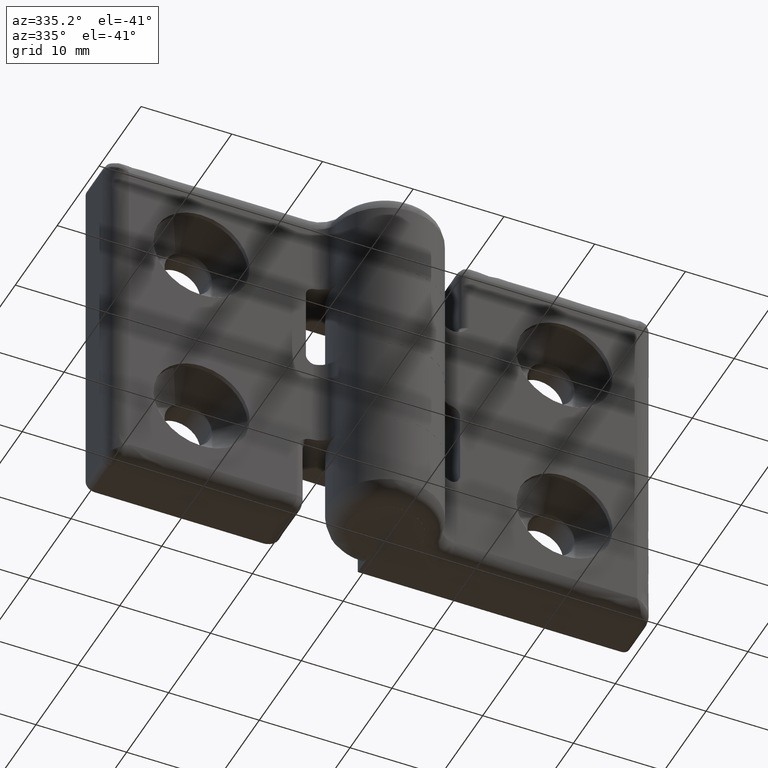
[diagram: clean part render]
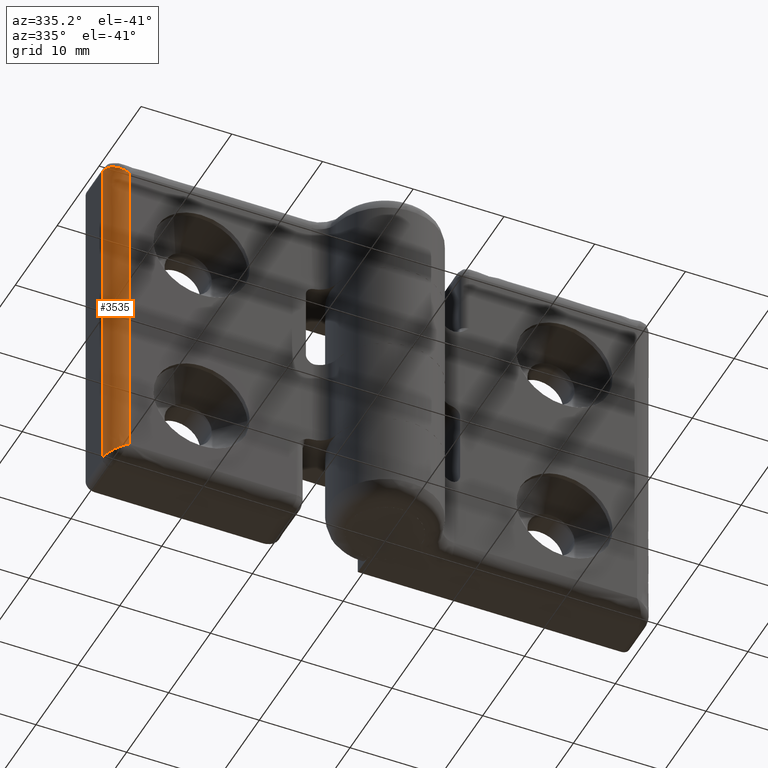
[diagram: same view with one face highlighted and labeled with its STEP entity id]
A machine part, auxiliary view. The second image highlights one B-rep face of the part: STEP entity #3535.
In plain terms, the highlighted face is a freeform B-spline surface patch.
Its self-contained STEP definition (entity closure, byte-faithful):
#3378=CARTESIAN_POINT('',(28.0,0.500000000000000,2.0));
#3379=VERTEX_POINT('',#3378);
#3457=CARTESIAN_POINT('',(30.0,2.500000000000000,1.0));
#3458=VERTEX_POINT('',#3457);
#3472=CARTESIAN_POINT('',(30.0,2.500000000000000,1.000000000000002));
#3473=CARTESIAN_POINT('',(30.000000000000004,0.500000000000000,1.000000000000002));
#3474=CARTESIAN_POINT('',(28.0,0.500000000000000,2.0));
#3482=(BOUNDED_CURVE()B_SPLINE_CURVE(2,(#3472,#3473,#3474),.UNSPECIFIED.,.F.,.U.)CURVE()GEOMETRIC_REPRESENTATION_ITEM()QUASI_UNIFORM_CURVE()RATIONAL_B_SPLINE_CURVE((1.0,0.707106781186548,1.0))REPRESENTATION_ITEM(''));
#3483=EDGE_CURVE('',#3458,#3379,#3482,.T.);
#3489=CARTESIAN_POINT('',(27.912761225269328,0.501903556836285,39.950000000000003));
#3490=CARTESIAN_POINT('',(27.912761225269328,0.501903556836285,0.026249999999997));
#3491=CARTESIAN_POINT('',(30.152120528918079,0.404131018128037,39.950000000000003));
#3492=CARTESIAN_POINT('',(30.152120528918079,0.404131018128037,0.026249999999997));
#3493=CARTESIAN_POINT('',(29.995085826463828,2.640116184087051,39.949999999999996));
#3494=CARTESIAN_POINT('',(29.995085826463828,2.640116184087051,0.026249999999997));
#3502=(BOUNDED_SURFACE()B_SPLINE_SURFACE(1,2,((#3489,#3491,#3493),(#3490,#3492,#3494)),.UNSPECIFIED.,.F.,.F.,.U.)B_SPLINE_SURFACE_WITH_KNOTS((2,2),(3,3),(0.0,39.923750000000013),(0.0,3.583485079683976),.UNSPECIFIED.)GEOMETRIC_REPRESENTATION_ITEM()RATIONAL_B_SPLINE_SURFACE(((1.0,0.664513898535122,0.996233561259061),(1.0,0.664513898535122,0.996233561259061)))REPRESENTATION_ITEM('')SURFACE());
#3503=CARTESIAN_POINT('',(30.0,2.500000000000000,39.0));
#3504=VERTEX_POINT('',#3503);
#3505=CARTESIAN_POINT('',(28.0,0.500000000000000,38.0));
#3506=VERTEX_POINT('',#3505);
#3507=CARTESIAN_POINT('',(30.0,2.500000000000000,39.0));
#3508=CARTESIAN_POINT('',(30.000000027603203,1.671572922375421,39.000000013801589));
#3509=CARTESIAN_POINT('',(29.414213585933901,1.085786461187710,38.707106792966947));
#3510=CARTESIAN_POINT('',(28.828427144264602,0.500000000000000,38.414213572132304));
#3511=CARTESIAN_POINT('',(28.0,0.500000000000000,38.0));
#3519=(BOUNDED_CURVE()B_SPLINE_CURVE(2,(#3507,#3508,#3509,#3510,#3511),.UNSPECIFIED.,.F.,.U.)B_SPLINE_CURVE_WITH_KNOTS((3,2,3),(0.0,0.500000000000000,1.0),.UNSPECIFIED.)CURVE()GEOMETRIC_REPRESENTATION_ITEM()RATIONAL_B_SPLINE_CURVE((1.0,0.923879529323532,1.0,0.923879529323532,1.0))REPRESENTATION_ITEM(''));
#3520=EDGE_CURVE('',#3504,#3506,#3519,.T.);
#3521=ORIENTED_EDGE('',*,*,#3520,.T.);
#3522=CARTESIAN_POINT('',(28.0,0.500000000000000,2.0));
#3523=CARTESIAN_POINT('',(28.0,0.500000000000000,38.0));
#3524=QUASI_UNIFORM_CURVE('',1,(#3522,#3523),.UNSPECIFIED.,.F.,.U.);
#3525=EDGE_CURVE('',#3379,#3506,#3524,.T.);
#3526=ORIENTED_EDGE('',*,*,#3525,.F.);
#3527=ORIENTED_EDGE('',*,*,#3483,.F.);
#3528=CARTESIAN_POINT('',(30.0,2.500000000000000,39.0));
#3529=CARTESIAN_POINT('',(30.0,2.500000000000000,1.0));
#3530=QUASI_UNIFORM_CURVE('',1,(#3528,#3529),.UNSPECIFIED.,.F.,.U.);
#3531=EDGE_CURVE('',#3504,#3458,#3530,.T.);
#3532=ORIENTED_EDGE('',*,*,#3531,.F.);
#3533=EDGE_LOOP('',(#3521,#3526,#3527,#3532));
#3534=FACE_OUTER_BOUND('',#3533,.T.);
#3535=ADVANCED_FACE('',(#3534),#3502,.T.);